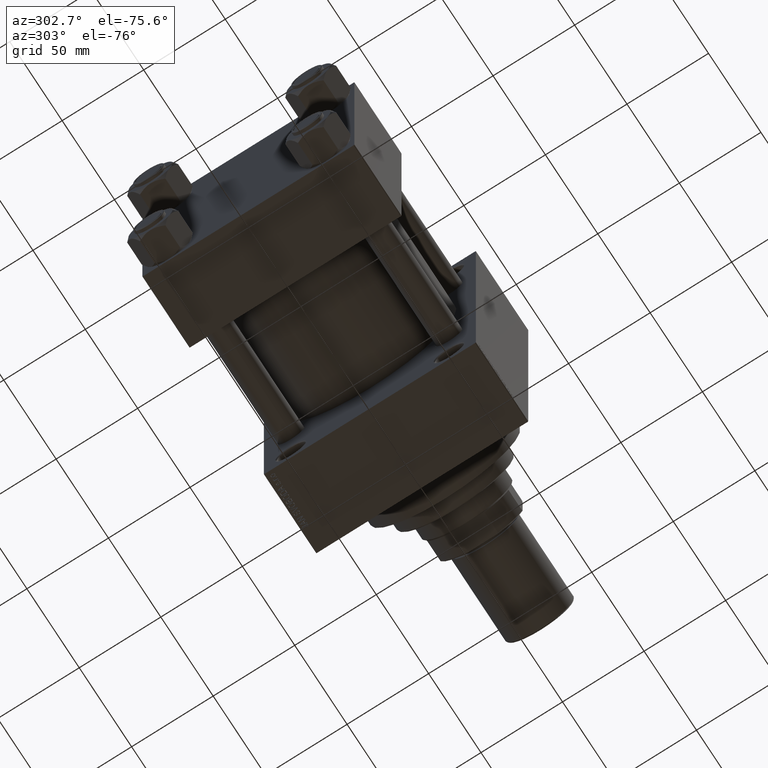
[diagram: clean part render]
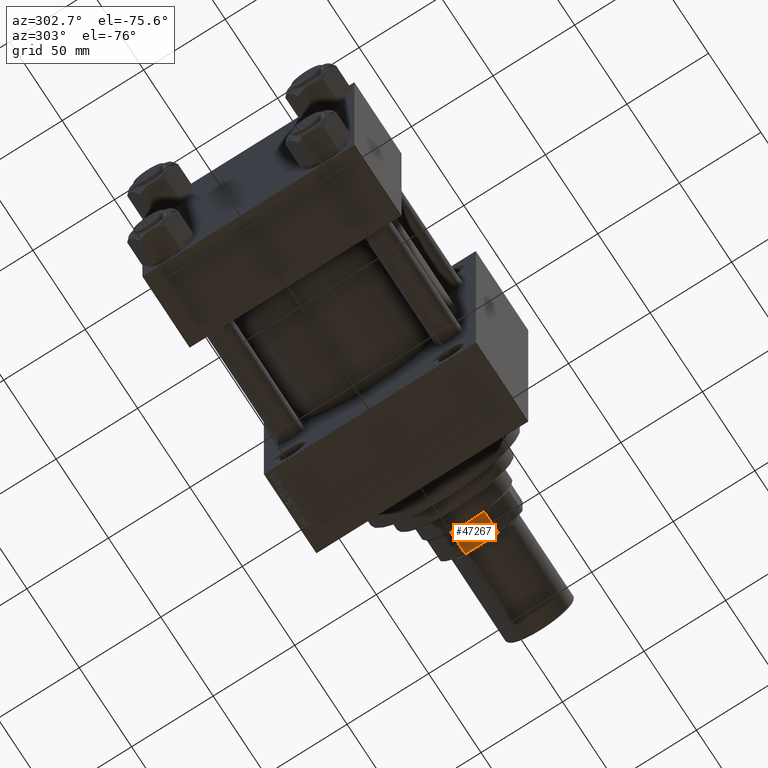
[diagram: same view with one face highlighted and labeled with its STEP entity id]
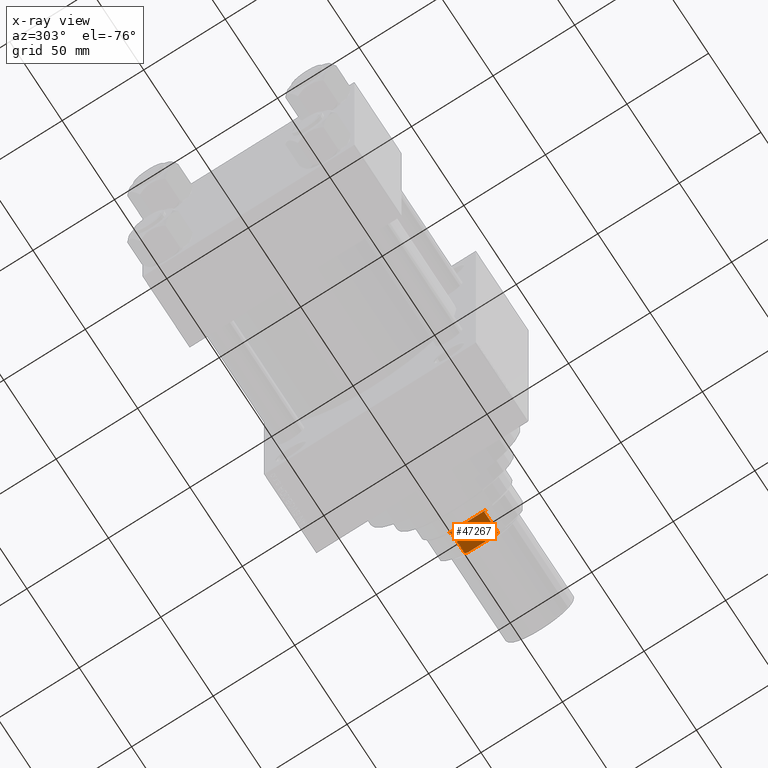
[diagram: x-ray of the same camera — body ghosted, the highlighted face saturated]
A machine part, auxiliary view. The second image highlights one B-rep face of the part: STEP entity #47267.
The next image is the same camera in x-ray: the body ghosted, the highlighted face saturated — about 0% of this face is hidden behind the body in this view.
In plain terms, the highlighted planar face has unit normal (0, -0, 1).
Its self-contained STEP definition (entity closure, byte-faithful):
#726 = B_SPLINE_CURVE_WITH_KNOTS ( 'NONE', 3,
 ( #46479, #42804, #19812, #27894 ),
 .UNSPECIFIED., .F., .F.,
 ( 4, 4 ),
 ( 1.734723475976806902E-18, 0.001494935877429957654 ),
 .UNSPECIFIED. ) ;
#856 = CARTESIAN_POINT ( 'NONE',  ( 10.19803902718555833, 25.00000000000000355, 164.5000000000000000 ) ) ;
#1781 = CARTESIAN_POINT ( 'NONE',  ( 10.19803902718555655, 24.99999999999999645, -0.001000000000001000089 ) ) ;
#2650 = DIRECTION ( 'NONE',  ( -0.000000000000000000, -0.000000000000000000, 1.000000000000000000 ) ) ;
#3304 = DIRECTION ( 'NONE',  ( 0.000000000000000000, -1.000000000000000000, 0.000000000000000000 ) ) ;
#4020 = PLANE ( 'NONE',  #48401 ) ;
#5313 = VECTOR ( 'NONE', #2650, 1000.000000000000000 ) ;
#6411 = VECTOR ( 'NONE', #31173, 1000.000000000000000 ) ;
#7692 = FACE_OUTER_BOUND ( 'NONE', #34544, .T. ) ;
#8225 = CARTESIAN_POINT ( 'NONE',  ( -11.03952915007668345, 25.00000000000000000, 164.1736838211911049 ) ) ;
#8458 = CARTESIAN_POINT ( 'NONE',  ( -10.62014219435931039, 25.00000000000000000, 164.3405694602838025 ) ) ;
#8521 = VERTEX_POINT ( 'NONE', #29287 ) ;
#8862 = CARTESIAN_POINT ( 'NONE',  ( -9.262276112429329800, 25.00000000000000000, 177.8430951735361134 ) ) ;
#10488 = LINE ( 'NONE', #32767, #5313 ) ;
#11657 = EDGE_CURVE ( 'NONE', #32326, #29338, #10488, .T. ) ;
#12503 = VERTEX_POINT ( 'NONE', #39824 ) ;
#14790 = DIRECTION ( 'NONE',  ( -1.000000000000000000, -0.000000000000000000, -0.000000000000000000 ) ) ;
#15855 = VERTEX_POINT ( 'NONE', #33617 ) ;
#15962 = CARTESIAN_POINT ( 'NONE',  ( -9.731776668925970597, 25.00000000000000000, 177.6761096935718172 ) ) ;
#15997 = LINE ( 'NONE', #23602, #6411 ) ;
#17256 = CARTESIAN_POINT ( 'NONE',  ( 10.61983482933081646, 25.00000000000000000, 164.3406855536377691 ) ) ;
#17655 = VERTEX_POINT ( 'NONE', #856 ) ;
#18398 = VECTOR ( 'NONE', #20145, 1000.000000000000000 ) ;
#19484 = CARTESIAN_POINT ( 'NONE',  ( -11.45643923738959025, 25.00000000000000000, 164.0000000000000000 ) ) ;
#19812 = CARTESIAN_POINT ( 'NONE',  ( 9.731776668926048757, 25.00000000000000000, 177.6761096935718172 ) ) ;
#20145 = DIRECTION ( 'NONE',  ( -0.000000000000000000, -0.000000000000000000, 1.000000000000000000 ) ) ;
#20387 = LINE ( 'NONE', #1781, #18398 ) ;
#20765 = ORIENTED_EDGE ( 'NONE', *, *, #11657, .T. ) ;
#21422 = CARTESIAN_POINT ( 'NONE',  ( 11.03923433039705593, 25.00000000000000000, 164.1738066424182136 ) ) ;
#21541 = B_SPLINE_CURVE_WITH_KNOTS ( 'NONE', 3,
 ( #23322, #15962, #8862, #46309 ),
 .UNSPECIFIED., .F., .F.,
 ( 4, 4 ),
 ( 0.000000000000000000, 0.001494935877430161484 ),
 .UNSPECIFIED. ) ;
#23322 = CARTESIAN_POINT ( 'NONE',  ( -10.19803902718555655, 25.00000000000000000, 177.5000000000000000 ) ) ;
#23602 = CARTESIAN_POINT ( 'NONE',  ( -25.00000000000000000, 25.00000000000000000, 178.0000000000000284 ) ) ;
#23873 = ORIENTED_EDGE ( 'NONE', *, *, #25562, .T. ) ;
#23944 = EDGE_CURVE ( 'NONE', #12503, #8521, #15997, .T. ) ;
#24870 = VERTEX_POINT ( 'NONE', #45631 ) ;
#25108 = CARTESIAN_POINT ( 'NONE',  ( 11.45643923738958492, 25.00000000000000000, 164.0000000000000000 ) ) ;
#25562 = EDGE_CURVE ( 'NONE', #12503, #44703, #726, .T. ) ;
#26091 = CARTESIAN_POINT ( 'NONE',  ( -10.19803902718555300, 25.00000000000000000, 164.5000000000000000 ) ) ;
#27839 = ORIENTED_EDGE ( 'NONE', *, *, #28998, .T. ) ;
#27894 = CARTESIAN_POINT ( 'NONE',  ( 10.19803902718555655, 24.99999999999999645, 177.5000000000000284 ) ) ;
#28998 = EDGE_CURVE ( 'NONE', #29338, #8521, #21541, .T. ) ;
#29287 = CARTESIAN_POINT ( 'NONE',  ( -8.789197915623342183, 25.00000000000000000, 178.0000000000000284 ) ) ;
#29338 = VERTEX_POINT ( 'NONE', #37948 ) ;
#31173 = DIRECTION ( 'NONE',  ( -1.000000000000000000, -0.000000000000000000, -0.000000000000000000 ) ) ;
#32326 = VERTEX_POINT ( 'NONE', #26091 ) ;
#32767 = CARTESIAN_POINT ( 'NONE',  ( -10.19803902718555655, 25.00000000000000000, -0.001000000000001000089 ) ) ;
#33617 = CARTESIAN_POINT ( 'NONE',  ( -11.45643923738959025, 25.00000000000000000, 164.0000000000000000 ) ) ;
#34073 = ORIENTED_EDGE ( 'NONE', *, *, #23944, .F. ) ;
#34544 = EDGE_LOOP ( 'NONE', ( #34073, #23873, #43265, #37046, #43493, #44955, #20765, #27839 ) ) ;
#34936 = EDGE_CURVE ( 'NONE', #17655, #44703, #20387, .T. ) ;
#35040 = B_SPLINE_CURVE_WITH_KNOTS ( 'NONE', 3,
 ( #19484, #8225, #8458, #35126 ),
 .UNSPECIFIED., .F., .F.,
 ( 4, 4 ),
 ( 0.1613657269701884445, 0.1626835971102010281 ),
 .UNSPECIFIED. ) ;
#35126 = CARTESIAN_POINT ( 'NONE',  ( -10.19803902718555300, 25.00000000000000000, 164.5000000000000000 ) ) ;
#36341 = CARTESIAN_POINT ( 'NONE',  ( 10.19803902718555833, 25.00000000000000355, 164.5000000000000000 ) ) ;
#36834 = CARTESIAN_POINT ( 'NONE',  ( -25.00000000000000000, 25.00000000000000000, 178.0000000000000284 ) ) ;
#37046 = ORIENTED_EDGE ( 'NONE', *, *, #38803, .T. ) ;
#37310 = VECTOR ( 'NONE', #14790, 1000.000000000000000 ) ;
#37948 = CARTESIAN_POINT ( 'NONE',  ( -10.19803902718555655, 25.00000000000000000, 177.5000000000000000 ) ) ;
#38719 = EDGE_CURVE ( 'NONE', #15855, #32326, #35040, .T. ) ;
#38803 = EDGE_CURVE ( 'NONE', #17655, #24870, #43188, .T. ) ;
#39824 = CARTESIAN_POINT ( 'NONE',  ( 8.789197915623548241, 25.00000000000000000, 178.0000000000000284 ) ) ;
#40975 = CARTESIAN_POINT ( 'NONE',  ( -25.00000000000000000, 25.00000000000000000, 164.0000000000000000 ) ) ;
#42804 = CARTESIAN_POINT ( 'NONE',  ( 9.262276112429466579, 25.00000000000000000, 177.8430951735361134 ) ) ;
#43188 = B_SPLINE_CURVE_WITH_KNOTS ( 'NONE', 3,
 ( #36341, #17256, #21422, #25108 ),
 .UNSPECIFIED., .F., .F.,
 ( 4, 4 ),
 ( 0.1347300791724978242, 0.1360693631961248928 ),
 .UNSPECIFIED. ) ;
#43265 = ORIENTED_EDGE ( 'NONE', *, *, #34936, .F. ) ;
#43493 = ORIENTED_EDGE ( 'NONE', *, *, #43858, .T. ) ;
#43858 = EDGE_CURVE ( 'NONE', #24870, #15855, #44412, .T. ) ;
#43947 = CARTESIAN_POINT ( 'NONE',  ( 10.19803902718555655, 24.99999999999999645, 177.5000000000000284 ) ) ;
#44412 = LINE ( 'NONE', #40975, #37310 ) ;
#44703 = VERTEX_POINT ( 'NONE', #43947 ) ;
#44955 = ORIENTED_EDGE ( 'NONE', *, *, #38719, .T. ) ;
#45136 = DIRECTION ( 'NONE',  ( 0.000000000000000000, -0.000000000000000000, -1.000000000000000000 ) ) ;
#45631 = CARTESIAN_POINT ( 'NONE',  ( 11.45643923738958492, 25.00000000000000000, 164.0000000000000000 ) ) ;
#46309 = CARTESIAN_POINT ( 'NONE',  ( -8.789197915623342183, 25.00000000000000000, 178.0000000000000284 ) ) ;
#46479 = CARTESIAN_POINT ( 'NONE',  ( 8.789197915623548241, 25.00000000000000000, 178.0000000000000284 ) ) ;
#47267 = ADVANCED_FACE ( 'NONE', ( #7692 ), #4020, .F. ) ;
#48401 = AXIS2_PLACEMENT_3D ( 'NONE', #36834, #3304, #45136 ) ;